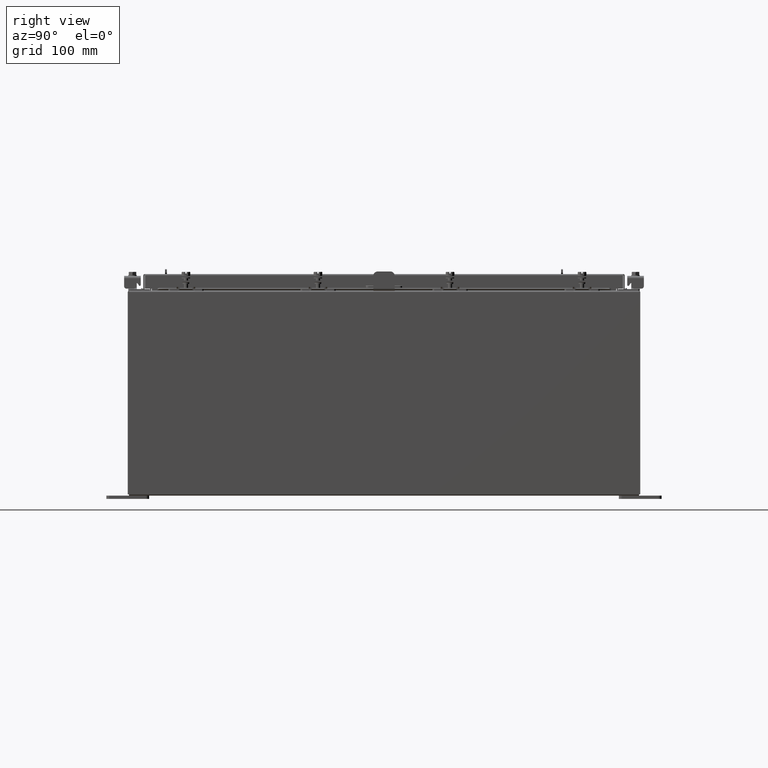
[diagram: clean part render]
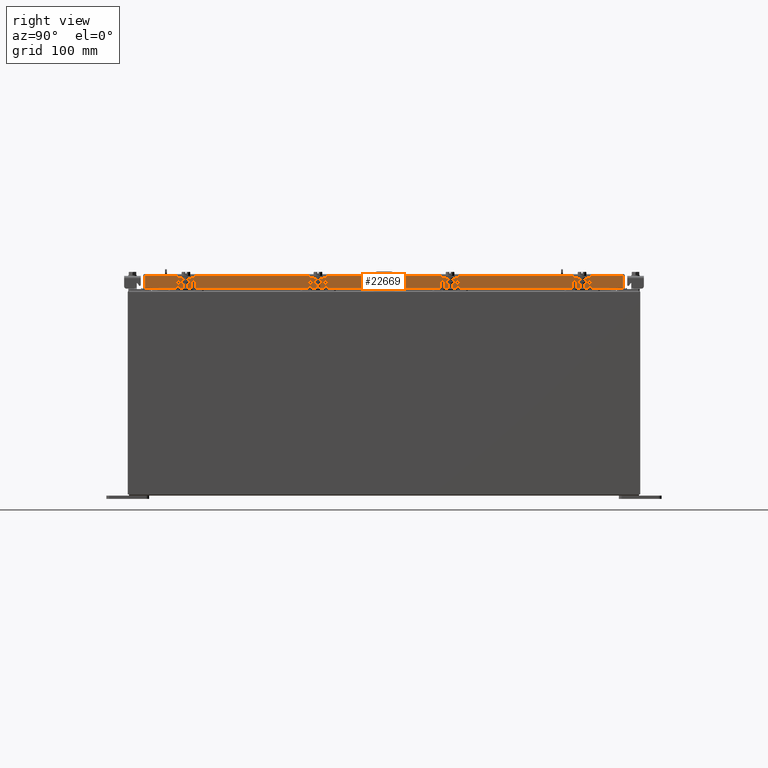
[diagram: same view with one face highlighted and labeled with its STEP entity id]
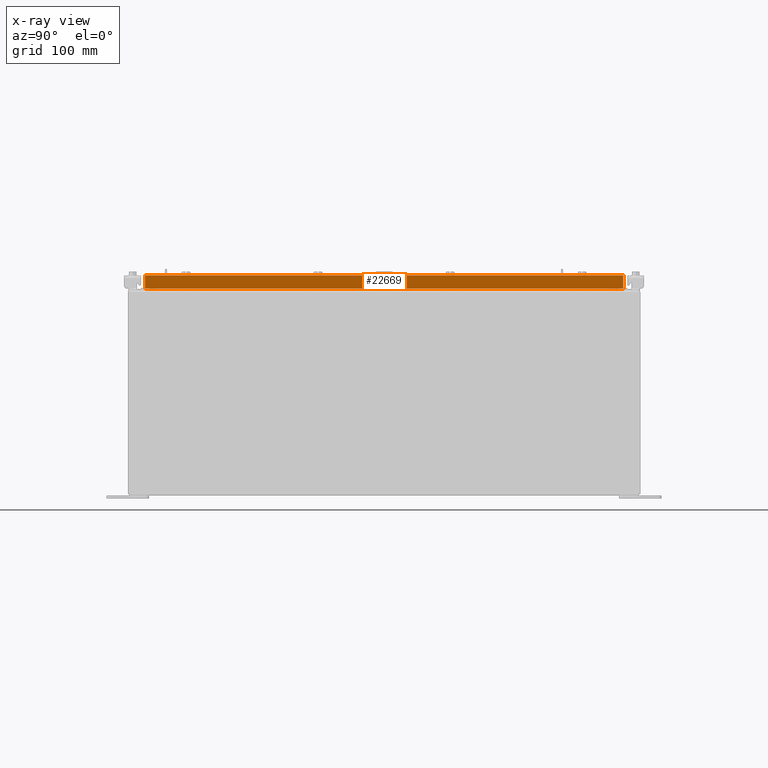
[diagram: x-ray of the same camera — body ghosted, the highlighted face saturated]
A machine part, right view. The second image highlights one B-rep face of the part: STEP entity #22669.
The next image is the same camera in x-ray: the body ghosted, the highlighted face saturated — about 0% of this face is hidden behind the body in this view.
In plain terms, the highlighted planar face has unit normal (1, 0, 0).
Its self-contained STEP definition (entity closure, byte-faithful):
#75 = DIRECTION ( 'NONE',  ( 0.0000000000000000000, -1.000000000000000000, 0.0000000000000000000 ) ) ;
#284 = ORIENTED_EDGE ( 'NONE', *, *, #2370, .T. ) ;
#340 = LINE ( 'NONE', #8742, #14065 ) ;
#744 = VERTEX_POINT ( 'NONE', #19163 ) ;
#1421 = VERTEX_POINT ( 'NONE', #8001 ) ;
#1757 = ORIENTED_EDGE ( 'NONE', *, *, #11195, .F. ) ;
#2164 = VERTEX_POINT ( 'NONE', #10041 ) ;
#2370 = EDGE_CURVE ( 'NONE', #2164, #744, #21097, .T. ) ;
#3933 = VERTEX_POINT ( 'NONE', #10109 ) ;
#4171 = CARTESIAN_POINT ( 'NONE',  ( 11.07799999999999200, -13.25515786437626400, -0.8500000000000018700 ) ) ;
#5495 = EDGE_CURVE ( 'NONE', #744, #1421, #16758, .T. ) ;
#6113 = VECTOR ( 'NONE', #16773, 39.37007874015748100 ) ;
#6366 = VECTOR ( 'NONE', #12864, 39.37007874015748100 ) ;
#6380 = EDGE_CURVE ( 'NONE', #13337, #15355, #16447, .T. ) ;
#6792 = ORIENTED_EDGE ( 'NONE', *, *, #5495, .T. ) ;
#7163 = EDGE_CURVE ( 'NONE', #2164, #3933, #15901, .T. ) ;
#7525 = ORIENTED_EDGE ( 'NONE', *, *, #20036, .F. ) ;
#7993 = CARTESIAN_POINT ( 'NONE',  ( 11.07799999999999900, 0.0000000000000000000, 3.148837674004379000E-014 ) ) ;
#8001 = CARTESIAN_POINT ( 'NONE',  ( 11.07799999999999900, -14.00515786437626900, -0.08770000000000007000 ) ) ;
#8742 = CARTESIAN_POINT ( 'NONE',  ( 11.07799999999999900, -14.00515786437626900, -0.07469999999999978000 ) ) ;
#9065 = DIRECTION ( 'NONE',  ( 0.0000000000000000000, -1.000000000000000000, 0.0000000000000000000 ) ) ;
#9207 = ORIENTED_EDGE ( 'NONE', *, *, #7163, .F. ) ;
#9803 = DIRECTION ( 'NONE',  ( 2.818880942772360100E-015, 0.0000000000000000000, -1.000000000000000000 ) ) ;
#10041 = CARTESIAN_POINT ( 'NONE',  ( 11.07800000000000300, 14.00515786437627200, -0.8499999999999996400 ) ) ;
#10109 = CARTESIAN_POINT ( 'NONE',  ( 11.07799999999999200, 13.25515786437627100, -0.8500000000000018700 ) ) ;
#10571 = DIRECTION ( 'NONE',  ( -2.818880942772360100E-015, -6.982962677686265900E-015, 1.000000000000000000 ) ) ;
#11140 = VECTOR ( 'NONE', #75, 39.37007874015748100 ) ;
#11195 = EDGE_CURVE ( 'NONE', #15355, #1421, #340, .T. ) ;
#11460 = CARTESIAN_POINT ( 'NONE',  ( 11.07799999999999900, 0.0000000000000000000, -0.08770000000000007000 ) ) ;
#11639 = CARTESIAN_POINT ( 'NONE',  ( 11.07800000000000300, -14.00515786437626400, -0.8499999999999996400 ) ) ;
#11643 = ORIENTED_EDGE ( 'NONE', *, *, #6380, .F. ) ;
#12618 = LINE ( 'NONE', #21590, #22677 ) ;
#12859 = EDGE_LOOP ( 'NONE', ( #1757, #11643, #7525, #9207, #284, #6792 ) ) ;
#12864 = DIRECTION ( 'NONE',  ( 0.0000000000000000000, -1.000000000000000000, 0.0000000000000000000 ) ) ;
#13337 = VERTEX_POINT ( 'NONE', #4171 ) ;
#14065 = VECTOR ( 'NONE', #10571, 39.37007874015748100 ) ;
#14103 = CARTESIAN_POINT ( 'NONE',  ( 11.07799999999999900, 14.00515786437626900, 1.292858714020875700E-013 ) ) ;
#14405 = CARTESIAN_POINT ( 'NONE',  ( 11.07800000000000300, -14.09399999999999900, -0.8499999999999996400 ) ) ;
#14685 = CARTESIAN_POINT ( 'NONE',  ( 11.07800000000000300, -14.09399999999999900, -0.8499999999999996400 ) ) ;
#15311 = AXIS2_PLACEMENT_3D ( 'NONE', #7993, #20528, #9803 ) ;
#15355 = VERTEX_POINT ( 'NONE', #11639 ) ;
#15901 = LINE ( 'NONE', #14685, #6366 ) ;
#16332 = VECTOR ( 'NONE', #16662, 39.37007874015748100 ) ;
#16447 = LINE ( 'NONE', #14405, #11140 ) ;
#16662 = DIRECTION ( 'NONE',  ( -2.818880942772360100E-015, -6.982962677686265900E-015, 1.000000000000000000 ) ) ;
#16758 = LINE ( 'NONE', #11460, #6113 ) ;
#16773 = DIRECTION ( 'NONE',  ( 0.0000000000000000000, -1.000000000000000000, 0.0000000000000000000 ) ) ;
#16936 = PLANE ( 'NONE',  #15311 ) ;
#19163 = CARTESIAN_POINT ( 'NONE',  ( 11.07799999999999900, 14.00515786437626500, -0.08770000000000007000 ) ) ;
#19292 = FACE_OUTER_BOUND ( 'NONE', #12859, .T. ) ;
#20036 = EDGE_CURVE ( 'NONE', #3933, #13337, #12618, .T. ) ;
#20528 = DIRECTION ( 'NONE',  ( 1.000000000000000000, 0.0000000000000000000, 2.818880942772360100E-015 ) ) ;
#21097 = LINE ( 'NONE', #14103, #16332 ) ;
#21590 = CARTESIAN_POINT ( 'NONE',  ( 11.07799999999999200, 13.25515786437627200, -0.8500000000000018700 ) ) ;
#22669 = ADVANCED_FACE ( 'NONE', ( #19292 ), #16936, .T. ) ;
#22677 = VECTOR ( 'NONE', #9065, 39.37007874015748100 ) ;